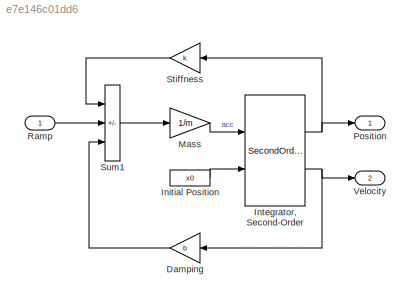
MODEL slx_e7e146c01dd6
KIND model
CONFIG AbsTol = 1e-6
CONFIG EnableMultiTasking = off
CONFIG FixedStep = auto
CONFIG MaxStep = auto
CONFIG MinStep = auto
CONFIG PreLoadFcn = prms.mass = 2; % kg\nprms.damping = 3; % N/m/s\nprms.stiffness = 128; % N/m\nprms.restitution = 0.9;\n\nprms.pos.min = -0.2; % m\nprms.pos.ini =  0.5; % m\nprms.pos.max =  inf; % m\n\nprms.vel.min = -realmax; % m/s, can't use inf, bug. grr.\nprms.vel.ini =  0.0; % m/s\nprms.vel.max =  realmax; % m/s, can't use inf, bug. grr.\n
CONFIG RelTol = 1e-3
CONFIG SampleTimeConstraint = Unconstrained
CONFIG SolverName = VariableStepAuto
CONFIG StartTime = 0.0
CONFIG StopTime = 20
WORKSPACE source: mxarray member
WORKSPACE b = 3
WORKSPACE k = 128
WORKSPACE m = 2
WORKSPACE x0 = 0.5
BLOCK [Gain] Damping
  Gain = b
BLOCK [Constant] Initial Position
  Value = x0
BLOCK [SecondOrderIntegrator] Integrator, Second-Order
  ICSourceX = external
  Ports = [2, 2]
  ReinitDXDTwhenXreachesSaturation = on
  StateNameDXDT = 'vel'
  StateNameX = 'pos'
BLOCK [Gain] Mass
  Gain = 1/m
BLOCK [Outport] Position
  VectorParamsAs1DForOutWhenUnconnected = off
BLOCK [Inport] Ramp
BLOCK [Gain] Stiffness
  Gain = k
BLOCK [Sum] Sum1
  IconShape = rectangular
  Inputs = -+-
  Ports = [3, 1]
BLOCK [Outport] Velocity
  Port = 2
  VectorParamsAs1DForOutWhenUnconnected = off
LINE Damping:1 -> Sum1:3
LINE Initial Position:1 -> Integrator, Second-Order:2
NET Integrator, Second-Order:1 -> Position:1, Stiffness:1
NET Integrator, Second-Order:2 -> Damping:1, Velocity:1
LINE Mass:1 -> Integrator, Second-Order:1
LINE Ramp:1 -> Sum1:2
LINE Stiffness:1 -> Sum1:1
LINE Sum1:1 -> Mass:1
note: NET lines group one-source signal fan-out (src -> all destinations, sorted); 1:1 wires keep LINE
